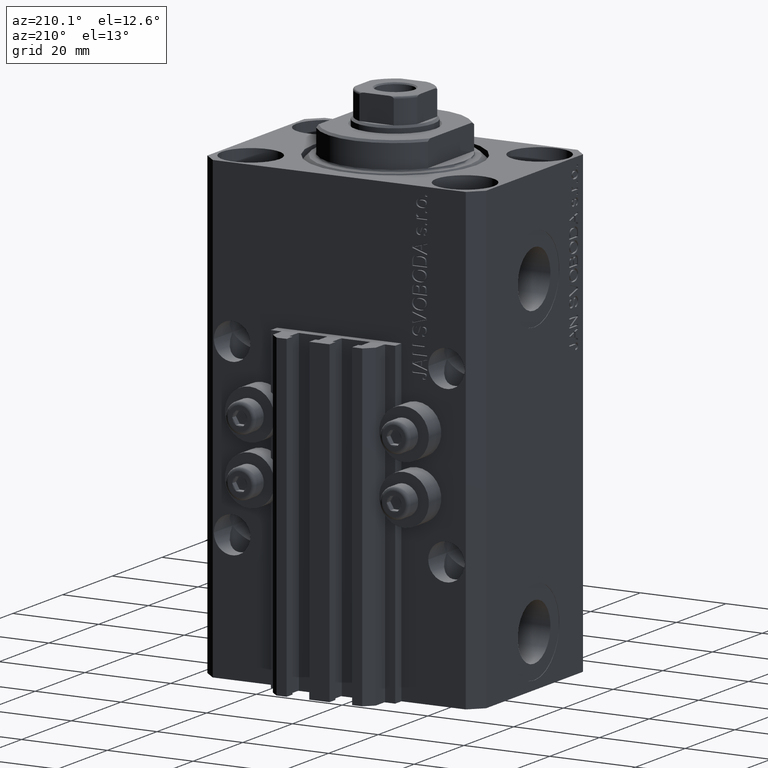
[diagram: clean part render]
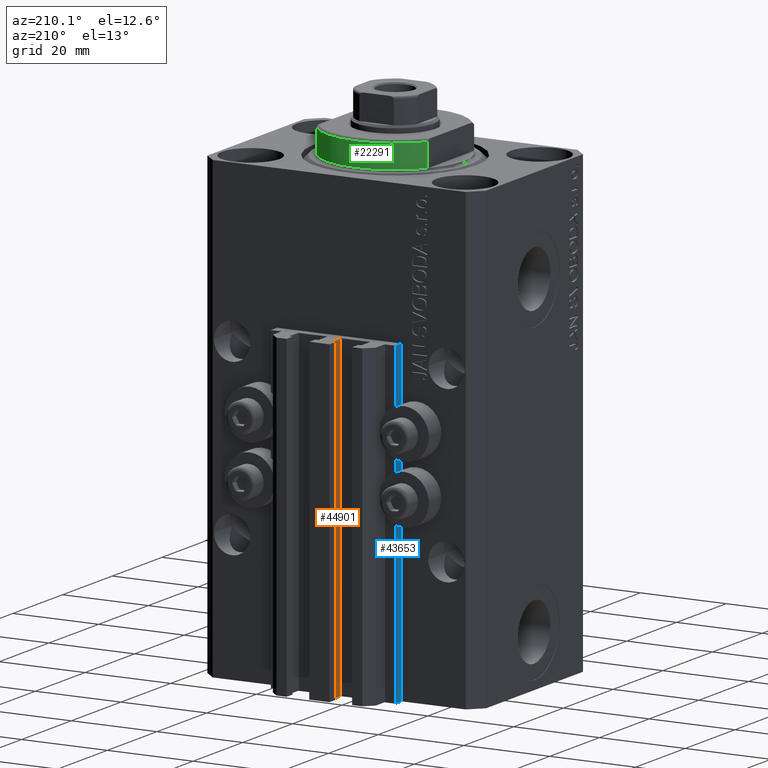
[diagram: same view with three faces highlighted in distinct colors, each labeled with its STEP entity id]
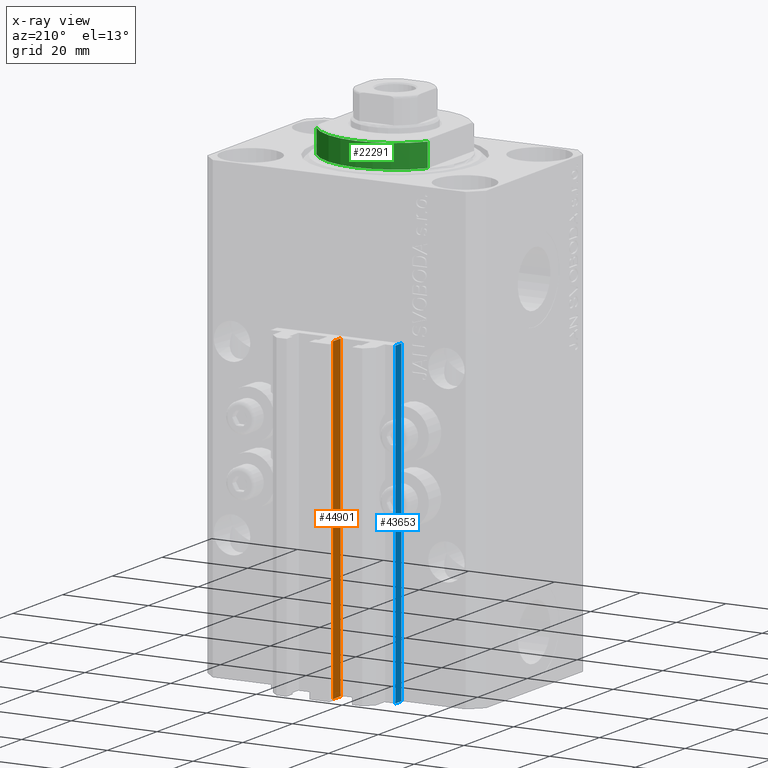
[diagram: x-ray of the same camera — body ghosted, the three highlighted faces saturated]
A machine part, auxiliary view with three faces highlighted in distinct colors.
The next image is the same camera in x-ray (body ghosted, the three faces saturated) — at least one of them is partly hidden behind the body in this view.
Their STEP definitions:

[orange] entity #44901 — the highlighted planar face has unit normal (-1, 0, 0).
#983 = LINE ( 'NONE', #33537, #17418 ) ;
#2643 = VECTOR ( 'NONE', #46273, 1000.000000000000000 ) ;
#5239 = CARTESIAN_POINT ( 'NONE',  ( -1.600000000000003197, 27.89999999999950120, -107.0000000000000000 ) ) ;
#6035 = DIRECTION ( 'NONE',  ( -6.776263578034385456E-17, -1.000000000000000000, 0.000000000000000000 ) ) ;
#6232 = CARTESIAN_POINT ( 'NONE',  ( -1.600000000000003197, 27.89999999999950120, -33.00000000000000000 ) ) ;
#7864 = EDGE_CURVE ( 'NONE', #33820, #8629, #41933, .T. ) ;
#8177 = DIRECTION ( 'NONE',  ( -6.776263578034385456E-17, -1.000000000000000000, 0.000000000000000000 ) ) ;
#8629 = VERTEX_POINT ( 'NONE', #27390 ) ;
#10547 = EDGE_LOOP ( 'NONE', ( #36608, #29674, #42273, #17308 ) ) ;
#10554 = CARTESIAN_POINT ( 'NONE',  ( -1.600000000000000533, 27.89999999999950120, -107.0000000000000000 ) ) ;
#11518 = DIRECTION ( 'NONE',  ( -1.000000000000000000, 6.776263578034385456E-17, 0.000000000000000000 ) ) ;
#11852 = DIRECTION ( 'NONE',  ( -6.776263578034385456E-17, -1.000000000000000000, 0.000000000000000000 ) ) ;
#14946 = LINE ( 'NONE', #25801, #22283 ) ;
#16870 = CARTESIAN_POINT ( 'NONE',  ( -1.600000000000000755, 24.69999999999949480, -107.0000000000000000 ) ) ;
#16997 = EDGE_CURVE ( 'NONE', #37805, #35676, #38268, .T. ) ;
#17308 = ORIENTED_EDGE ( 'NONE', *, *, #7864, .T. ) ;
#17418 = VECTOR ( 'NONE', #11852, 1000.000000000000000 ) ;
#22283 = VECTOR ( 'NONE', #8177, 1000.000000000000000 ) ;
#22788 = EDGE_CURVE ( 'NONE', #35676, #8629, #14946, .T. ) ;
#23114 = DIRECTION ( 'NONE',  ( 0.000000000000000000, 0.000000000000000000, 1.000000000000000000 ) ) ;
#25801 = CARTESIAN_POINT ( 'NONE',  ( -1.600000000000000533, 27.89999999999950120, -33.00000000000000000 ) ) ;
#25967 = PLANE ( 'NONE',  #44588 ) ;
#26217 = FACE_OUTER_BOUND ( 'NONE', #10547, .T. ) ;
#27390 = CARTESIAN_POINT ( 'NONE',  ( -1.600000000000000755, 24.69999999999949480, -33.00000000000000000 ) ) ;
#29674 = ORIENTED_EDGE ( 'NONE', *, *, #16997, .F. ) ;
#33537 = CARTESIAN_POINT ( 'NONE',  ( -1.600000000000000533, 27.89999999999950120, -107.0000000000000000 ) ) ;
#33656 = VECTOR ( 'NONE', #23114, 1000.000000000000000 ) ;
#33820 = VERTEX_POINT ( 'NONE', #40683 ) ;
#35676 = VERTEX_POINT ( 'NONE', #6232 ) ;
#36608 = ORIENTED_EDGE ( 'NONE', *, *, #22788, .F. ) ;
#37805 = VERTEX_POINT ( 'NONE', #40884 ) ;
#38268 = LINE ( 'NONE', #5239, #33656 ) ;
#38975 = EDGE_CURVE ( 'NONE', #37805, #33820, #983, .T. ) ;
#40683 = CARTESIAN_POINT ( 'NONE',  ( -1.600000000000000755, 24.69999999999949480, -107.0000000000000000 ) ) ;
#40884 = CARTESIAN_POINT ( 'NONE',  ( -1.600000000000003197, 27.89999999999950120, -107.0000000000000000 ) ) ;
#41933 = LINE ( 'NONE', #16870, #2643 ) ;
#42273 = ORIENTED_EDGE ( 'NONE', *, *, #38975, .T. ) ;
#44588 = AXIS2_PLACEMENT_3D ( 'NONE', #10554, #11518, #6035 ) ;
#44901 = ADVANCED_FACE ( 'NONE', ( #26217 ), #25967, .T. ) ;
#46273 = DIRECTION ( 'NONE',  ( 0.000000000000000000, 0.000000000000000000, 1.000000000000000000 ) ) ;

[blue] entity #43653 — the highlighted planar face has unit normal (-1, 0, 0).
#363 = VECTOR ( 'NONE', #32080, 1000.000000000000000 ) ;
#1721 = CARTESIAN_POINT ( 'NONE',  ( -14.50000000000000000, 24.99999999999949196, -33.00000000000000000 ) ) ;
#5277 = AXIS2_PLACEMENT_3D ( 'NONE', #42666, #20748, #35437 ) ;
#5875 = ORIENTED_EDGE ( 'NONE', *, *, #11750, .T. ) ;
#6480 = FACE_OUTER_BOUND ( 'NONE', #42120, .T. ) ;
#7260 = VECTOR ( 'NONE', #43590, 1000.000000000000000 ) ;
#8101 = EDGE_CURVE ( 'NONE', #16943, #24531, #27186, .T. ) ;
#8864 = DIRECTION ( 'NONE',  ( 0.000000000000000000, 0.000000000000000000, 1.000000000000000000 ) ) ;
#10154 = CARTESIAN_POINT ( 'NONE',  ( -14.50000000000000000, 22.49999999999949907, -107.0000000000000000 ) ) ;
#11128 = EDGE_CURVE ( 'NONE', #24531, #41284, #26240, .T. ) ;
#11750 = EDGE_CURVE ( 'NONE', #19361, #41284, #43190, .T. ) ;
#12412 = ORIENTED_EDGE ( 'NONE', *, *, #11128, .F. ) ;
#13154 = ORIENTED_EDGE ( 'NONE', *, *, #8101, .F. ) ;
#13345 = CARTESIAN_POINT ( 'NONE',  ( -14.50000000000000000, 22.49999999999949907, -33.00000000000000000 ) ) ;
#16943 = VERTEX_POINT ( 'NONE', #34885 ) ;
#19361 = VERTEX_POINT ( 'NONE', #10154 ) ;
#20525 = DIRECTION ( 'NONE',  ( 0.000000000000000000, -1.000000000000000000, 0.000000000000000000 ) ) ;
#20748 = DIRECTION ( 'NONE',  ( -1.000000000000000000, 0.000000000000000000, 0.000000000000000000 ) ) ;
#20777 = LINE ( 'NONE', #27270, #30735 ) ;
#21022 = CARTESIAN_POINT ( 'NONE',  ( -14.50000000000000000, 22.49999999999949907, -107.0000000000000000 ) ) ;
#22561 = EDGE_CURVE ( 'NONE', #16943, #19361, #20777, .T. ) ;
#24531 = VERTEX_POINT ( 'NONE', #1721 ) ;
#24825 = PLANE ( 'NONE',  #5277 ) ;
#26240 = LINE ( 'NONE', #37072, #7260 ) ;
#27186 = LINE ( 'NONE', #41881, #28085 ) ;
#27270 = CARTESIAN_POINT ( 'NONE',  ( -14.50000000000000000, 24.99999999999949196, -107.0000000000000000 ) ) ;
#28085 = VECTOR ( 'NONE', #8864, 1000.000000000000000 ) ;
#30735 = VECTOR ( 'NONE', #20525, 1000.000000000000000 ) ;
#32080 = DIRECTION ( 'NONE',  ( 0.000000000000000000, 0.000000000000000000, 1.000000000000000000 ) ) ;
#34885 = CARTESIAN_POINT ( 'NONE',  ( -14.50000000000000000, 24.99999999999949196, -107.0000000000000000 ) ) ;
#35437 = DIRECTION ( 'NONE',  ( 0.000000000000000000, 0.000000000000000000, 1.000000000000000000 ) ) ;
#37072 = CARTESIAN_POINT ( 'NONE',  ( -14.50000000000000000, 24.99999999999949196, -33.00000000000000000 ) ) ;
#41284 = VERTEX_POINT ( 'NONE', #13345 ) ;
#41881 = CARTESIAN_POINT ( 'NONE',  ( -14.50000000000000000, 24.99999999999949196, -107.0000000000000000 ) ) ;
#42120 = EDGE_LOOP ( 'NONE', ( #12412, #13154, #45323, #5875 ) ) ;
#42666 = CARTESIAN_POINT ( 'NONE',  ( -14.50000000000000000, 24.99999999999949196, -107.0000000000000000 ) ) ;
#43190 = LINE ( 'NONE', #21022, #363 ) ;
#43590 = DIRECTION ( 'NONE',  ( 0.000000000000000000, -1.000000000000000000, 0.000000000000000000 ) ) ;
#43653 = ADVANCED_FACE ( 'NONE', ( #6480 ), #24825, .T. ) ;
#45323 = ORIENTED_EDGE ( 'NONE', *, *, #22561, .T. ) ;

[green] entity #22291 — the highlighted cylindrical surface (partial cylindrical patch) has radius 16 mm, axis along (0, 0, -1).
#2630 = CARTESIAN_POINT ( 'NONE',  ( 0.000000000000000000, 0.000000000000000000, -6.500000000000000000 ) ) ;
#3012 = CIRCLE ( 'NONE', #4546, 16.00000000000000000 ) ;
#4546 = AXIS2_PLACEMENT_3D ( 'NONE', #31777, #46481, #13462 ) ;
#4694 = CARTESIAN_POINT ( 'NONE',  ( 13.00000000000000000, 9.327379053088813876, -6.500000000000000000 ) ) ;
#5554 = DIRECTION ( 'NONE',  ( 1.000000000000000000, 0.000000000000000000, 0.000000000000000000 ) ) ;
#5779 = AXIS2_PLACEMENT_3D ( 'NONE', #11673, #41777, #41545 ) ;
#5787 = FACE_OUTER_BOUND ( 'NONE', #9968, .T. ) ;
#7585 = DIRECTION ( 'NONE',  ( -0.000000000000000000, -0.000000000000000000, 1.000000000000000000 ) ) ;
#8535 = VERTEX_POINT ( 'NONE', #40674 ) ;
#9184 = DIRECTION ( 'NONE',  ( -0.000000000000000000, -0.000000000000000000, 1.000000000000000000 ) ) ;
#9526 = ORIENTED_EDGE ( 'NONE', *, *, #21267, .F. ) ;
#9968 = EDGE_LOOP ( 'NONE', ( #9526, #23141, #44649, #28051 ) ) ;
#11029 = VERTEX_POINT ( 'NONE', #24846 ) ;
#11465 = LINE ( 'NONE', #4694, #13772 ) ;
#11673 = CARTESIAN_POINT ( 'NONE',  ( 0.000000000000000000, 0.000000000000000000, -6.000000000000023981 ) ) ;
#12717 = EDGE_CURVE ( 'NONE', #36579, #8535, #22735, .T. ) ;
#13462 = DIRECTION ( 'NONE',  ( 1.000000000000000000, -8.881784197001252323E-16, 0.000000000000000000 ) ) ;
#13772 = VECTOR ( 'NONE', #7585, 1000.000000000000000 ) ;
#14724 = CARTESIAN_POINT ( 'NONE',  ( 13.00000000000000000, 9.327379053088916905, -6.000000000000014211 ) ) ;
#15525 = VERTEX_POINT ( 'NONE', #35875 ) ;
#16203 = CARTESIAN_POINT ( 'NONE',  ( -13.00000000000000000, 9.327379053088813876, -6.500000000000000000 ) ) ;
#21267 = EDGE_CURVE ( 'NONE', #36579, #11029, #11465, .T. ) ;
#22291 = ADVANCED_FACE ( 'NONE', ( #5787 ), #39057, .T. ) ;
#22571 = EDGE_CURVE ( 'NONE', #8535, #15525, #46070, .T. ) ;
#22735 = CIRCLE ( 'NONE', #5779, 16.00000000000000000 ) ;
#23141 = ORIENTED_EDGE ( 'NONE', *, *, #12717, .T. ) ;
#24846 = CARTESIAN_POINT ( 'NONE',  ( 13.00000000000000000, 9.327379053088815652, -0.4999999999999995559 ) ) ;
#26349 = EDGE_CURVE ( 'NONE', #15525, #11029, #3012, .T. ) ;
#28051 = ORIENTED_EDGE ( 'NONE', *, *, #26349, .T. ) ;
#31777 = CARTESIAN_POINT ( 'NONE',  ( 0.000000000000000000, 0.000000000000000000, -0.4999999999999995559 ) ) ;
#32268 = AXIS2_PLACEMENT_3D ( 'NONE', #2630, #9184, #5554 ) ;
#35875 = CARTESIAN_POINT ( 'NONE',  ( -13.00000000000000000, 9.327379053088815652, -0.4999999999999995559 ) ) ;
#36579 = VERTEX_POINT ( 'NONE', #14724 ) ;
#39057 = CYLINDRICAL_SURFACE ( 'NONE', #32268, 16.00000000000000000 ) ;
#40674 = CARTESIAN_POINT ( 'NONE',  ( -13.00000000000000000, 9.327379053088916905, -6.000000000000014211 ) ) ;
#41541 = VECTOR ( 'NONE', #45599, 1000.000000000000000 ) ;
#41545 = DIRECTION ( 'NONE',  ( -1.000000000000000000, 0.000000000000000000, 0.000000000000000000 ) ) ;
#41777 = DIRECTION ( 'NONE',  ( 0.000000000000000000, 0.000000000000000000, 1.000000000000000000 ) ) ;
#44649 = ORIENTED_EDGE ( 'NONE', *, *, #22571, .T. ) ;
#45599 = DIRECTION ( 'NONE',  ( -0.000000000000000000, -0.000000000000000000, 1.000000000000000000 ) ) ;
#46070 = LINE ( 'NONE', #16203, #41541 ) ;
#46481 = DIRECTION ( 'NONE',  ( -0.000000000000000000, -0.000000000000000000, -1.000000000000000000 ) ) ;